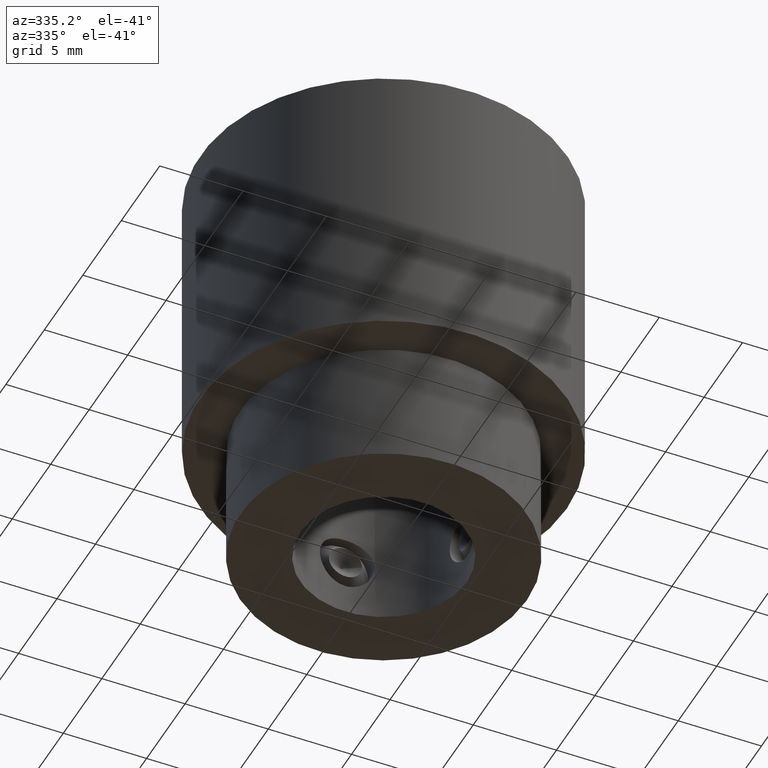
[diagram: clean part render]
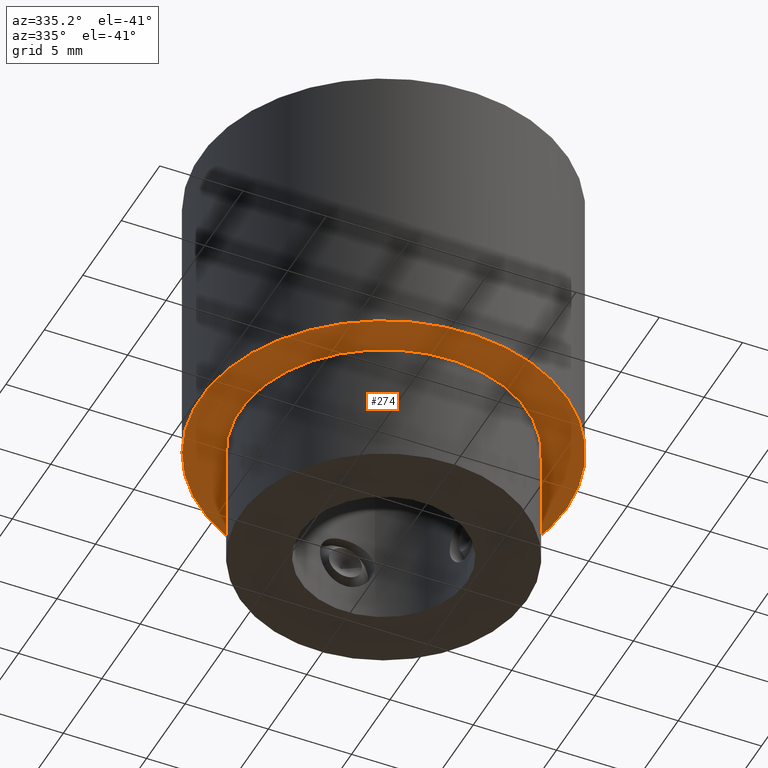
[diagram: same view with one face highlighted and labeled with its STEP entity id]
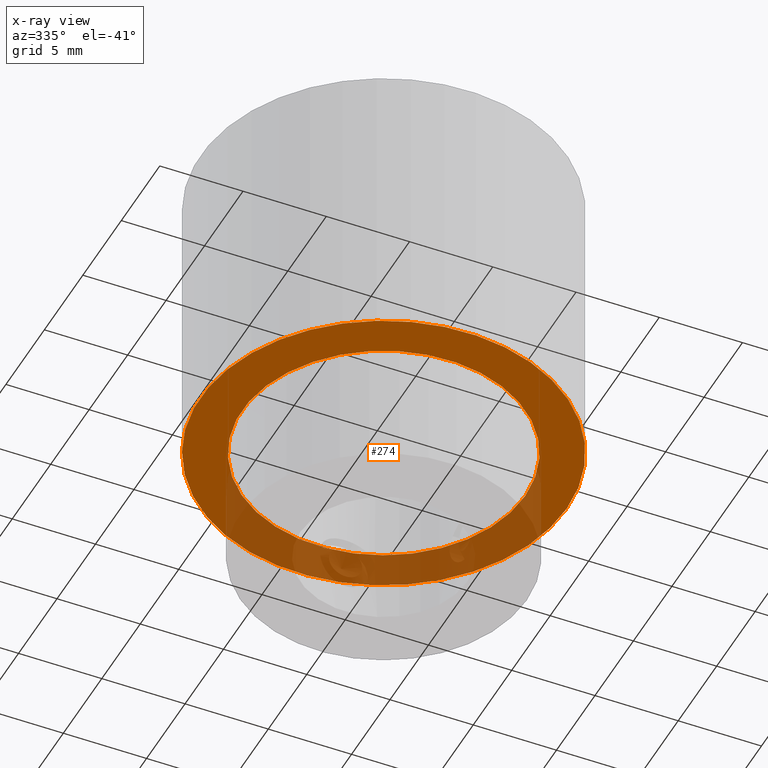
[diagram: x-ray of the same camera — body ghosted, the highlighted face saturated]
A machine part, auxiliary view. The second image highlights one B-rep face of the part: STEP entity #274.
The next image is the same camera in x-ray: the body ghosted, the highlighted face saturated — about 35% of this face is hidden behind the body in this view.
In plain terms, the highlighted planar face has unit normal (0, 0, 1).
Its self-contained STEP definition (entity closure, byte-faithful):
#274 = ADVANCED_FACE( '', ( #341, #342 ), #343, .F. );
#341 = FACE_OUTER_BOUND( '', #433, .T. );
#342 = FACE_BOUND( '', #434, .T. );
#343 = PLANE( '', #435 );
#433 = EDGE_LOOP( '', ( #547 ) );
#434 = EDGE_LOOP( '', ( #548 ) );
#435 = AXIS2_PLACEMENT_3D( '', #549, #550, #551 );
#547 = ORIENTED_EDGE( '', *, *, #714, .F. );
#548 = ORIENTED_EDGE( '', *, *, #716, .T. );
#549 = CARTESIAN_POINT( '', ( 0.000000000000000, 0.000000000000000, -17.5000000000000 ) );
#550 = DIRECTION( '', ( 0.000000000000000, 0.000000000000000, 1.00000000000000 ) );
#551 = DIRECTION( '', ( 1.00000000000000, 0.000000000000000, 0.000000000000000 ) );
#714 = EDGE_CURVE( '', #782, #782, #783, .T. );
#716 = EDGE_CURVE( '', #786, #786, #787, .T. );
#782 = VERTEX_POINT( '', #1094 );
#783 = CIRCLE( '', #1095, 11.0000000000000 );
#786 = VERTEX_POINT( '', #1098 );
#787 = CIRCLE( '', #1099, 8.50000000000000 );
#1094 = CARTESIAN_POINT( '', ( 11.0000000000000, 0.000000000000000, -17.5000000000000 ) );
#1095 = AXIS2_PLACEMENT_3D( '', #1276, #1277, #1278 );
#1098 = CARTESIAN_POINT( '', ( 8.50000000000000, 0.000000000000000, -17.5000000000000 ) );
#1099 = AXIS2_PLACEMENT_3D( '', #1282, #1283, #1284 );
#1276 = CARTESIAN_POINT( '', ( 0.000000000000000, 0.000000000000000, -17.5000000000000 ) );
#1277 = DIRECTION( '', ( 0.000000000000000, 0.000000000000000, 1.00000000000000 ) );
#1278 = DIRECTION( '', ( 1.00000000000000, 0.000000000000000, 0.000000000000000 ) );
#1282 = CARTESIAN_POINT( '', ( 0.000000000000000, 0.000000000000000, -17.5000000000000 ) );
#1283 = DIRECTION( '', ( 0.000000000000000, 0.000000000000000, 1.00000000000000 ) );
#1284 = DIRECTION( '', ( 1.00000000000000, 0.000000000000000, 0.000000000000000 ) );